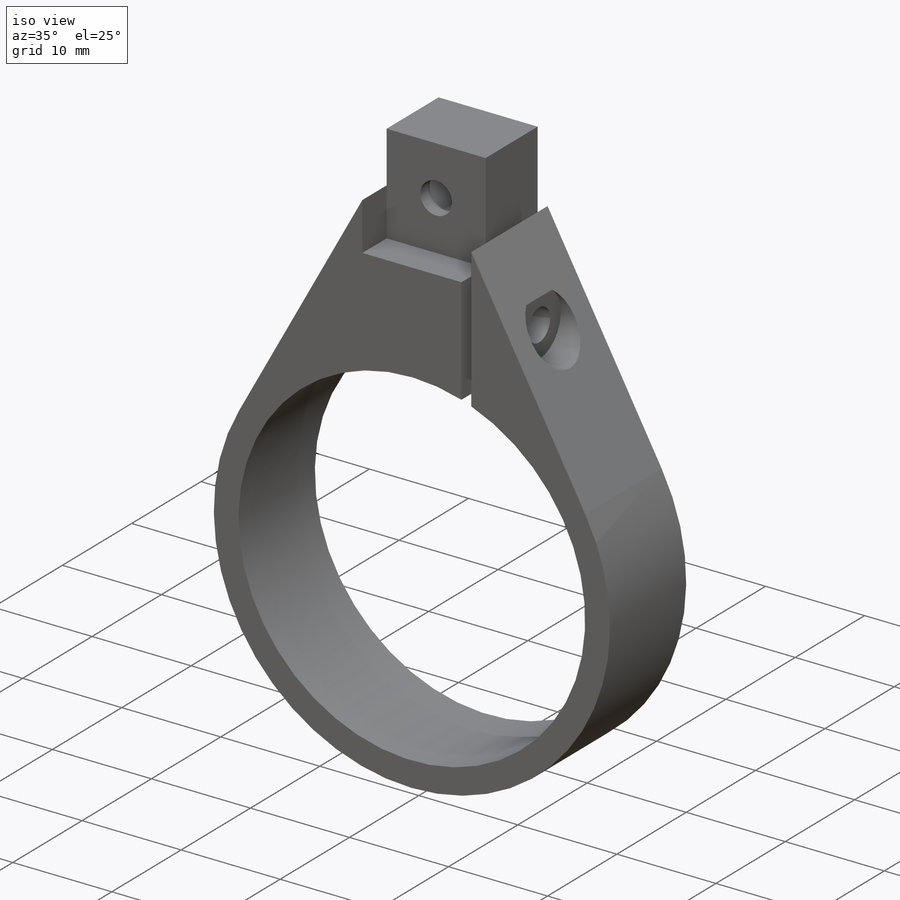
[diagram: iso view]
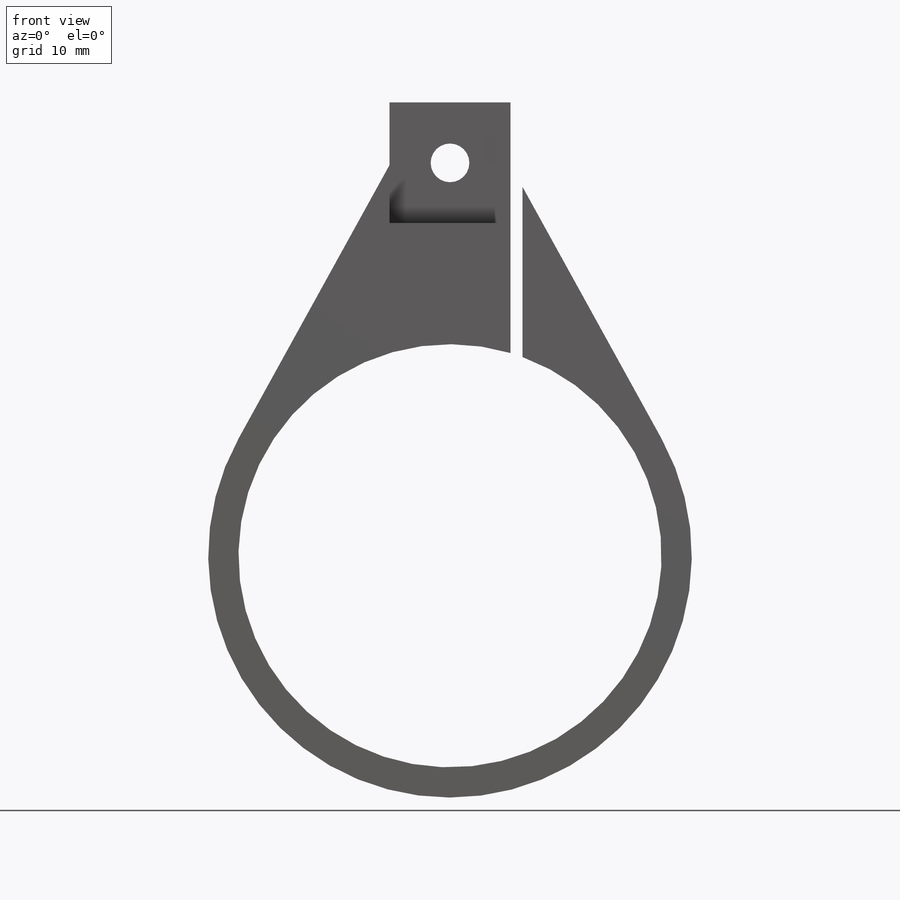
[diagram: front view]
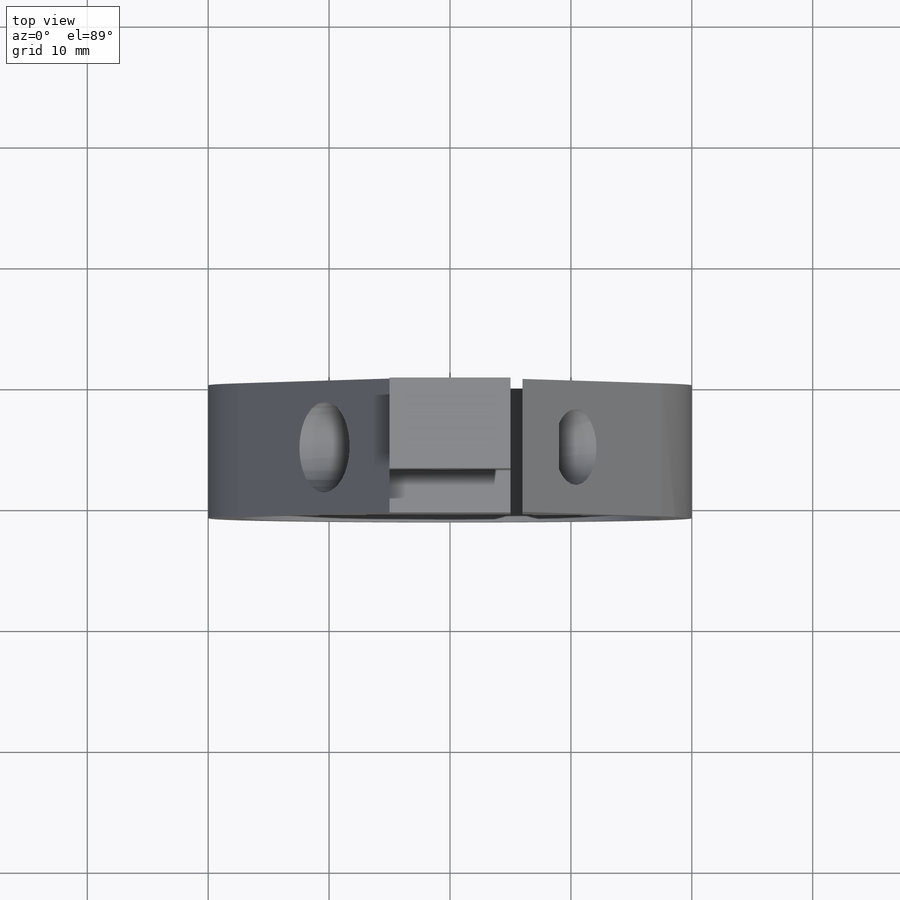
[diagram: top view]
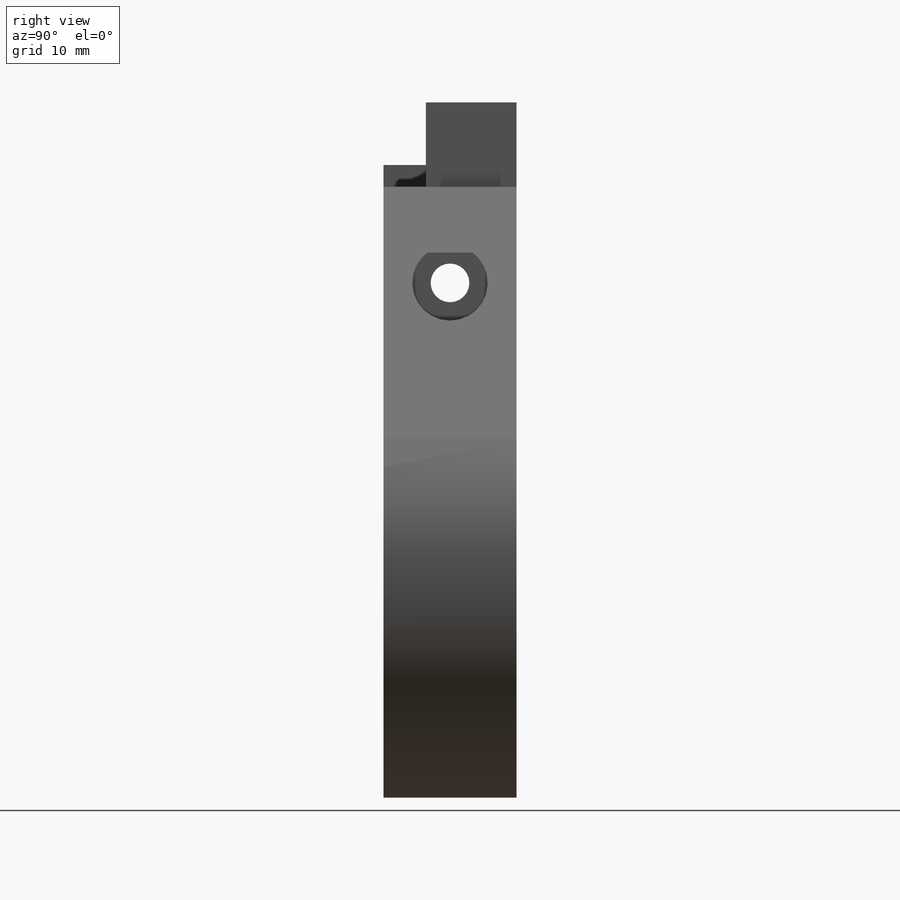
[diagram: right view]
SOLIDWORKS PART (.sldprt)
format: sldprt  version: not decoded by parser v0  size: 563,712 bytes
history: native  units: mm
features: sketch x19, cut_extrude x13, extrude x6, fillet x5, chamfer x2, material x1 (+13 scaffold rows collapsed)
feature tree (59):
  scaffold x13  (default folders/planes/origin — collapsed)
  material  "Material <not specified>"
  sketch  "Sketch1"  dims[D1=35.0mm D2=45.0mm]
  extrude  "Boss-Extrude1"  Depth=11mm
  sketch  "Sketch2"  dims[D1=10.0mm D2=15.0mm]
  extrude  "Boss-Extrude2"  Depth=5.5mm
  sketch  "Sketch3"  dims[D1=0.0mm]
  extrude  "Boss-Extrude3"  Depth=3.5mm
  sketch  "Sketch4"  dims[D2=7.0mm D3=10.0mm D1=0.0mm]
  extrude  "Boss-Extrude4"  Depth=10mm
  sketch  "Sketch5"  dims[D1=0.0mm]
  extrude  "Boss-Extrude5"  Depth=5.5mm
  chamfer  "Chamfer1"  Distance=3.5mm Angle=45deg
  sketch  "Sketch6"
  extrude  "Boss-Extrude6"  Depth=14.5mm
  chamfer  "Chamfer2"  Distance=3.5mm Angle=45deg
  sketch  "Sketch7"
  cut_extrude  "Cut-Extrude1"  [1 undecoded]
  sketch  "Sketch8"  dims[D1=3.2mm]
  cut_extrude  "Cut-Extrude2"  [1 undecoded]
  sketch  "Sketch9"  dims[D1=5.5mm]
  cut_extrude  "Cut-Extrude3"  Depth=2.5mm
  sketch  "Sketch10"
  cut_extrude  "Cut-Extrude4"  Depth=2.5mm
  sketch  "Sketch11"  dims[D1=1.0mm]
  cut_extrude  "Cut-Extrude5"  [1 undecoded]
  sketch  "Sketch12"  dims[D1=3.2mm]
  cut_extrude  "Cut-Extrude6"  Depth=2.5mm
  sketch  "Sketch13"  dims[D1=5.5mm]
  cut_extrude  "Cut-Extrude7"  Depth=10mm
  sketch  "Sketch14"  dims[D1=7.5mm]
  cut_extrude  "Cut-Extrude8"  Depth=10mm
  sketch  "Sketch16"  dims[D1=6.25mm]
  cut_extrude  "Cut-Extrude9"  Depth=10mm
  sketch  "Sketch17"  dims[D1=0.0mm]
  cut_extrude  "Cut-Extrude10"  Depth=2mm
  sketch  "Sketch18"  dims[D1=0.0mm D2=0.0mm]
  cut_extrude  "Cut-Extrude11"  Depth=2mm
  fillet  "Fillet1"  Radius=1mm
  fillet  "Fillet2"  Radius=1mm
  sketch  "Sketch19"  dims[D1=~40.000012mm D2=2.5mm D3=2.5mm]
  cut_extrude  "Cut-Extrude12"  [1 undecoded]
  sketch  "Sketch20"  dims[D1=0.0mm]
  cut_extrude  "Cut-Extrude13"  Depth=3mm
  fillet  "Fillet3"  Radius=2.25mm
  fillet  "Fillet4"  Radius=1mm
  fillet  "Fillet5"  Radius=1mm
decode coverage: 38 of 45 modeling features carry decoded parameters
note: ~ marks probable driven/reference dimensions
note: 4 parameter values undecoded
summary: no parameter record found for 4 features
note: suppression state not decoded; provenance and decode notes live in map.json
